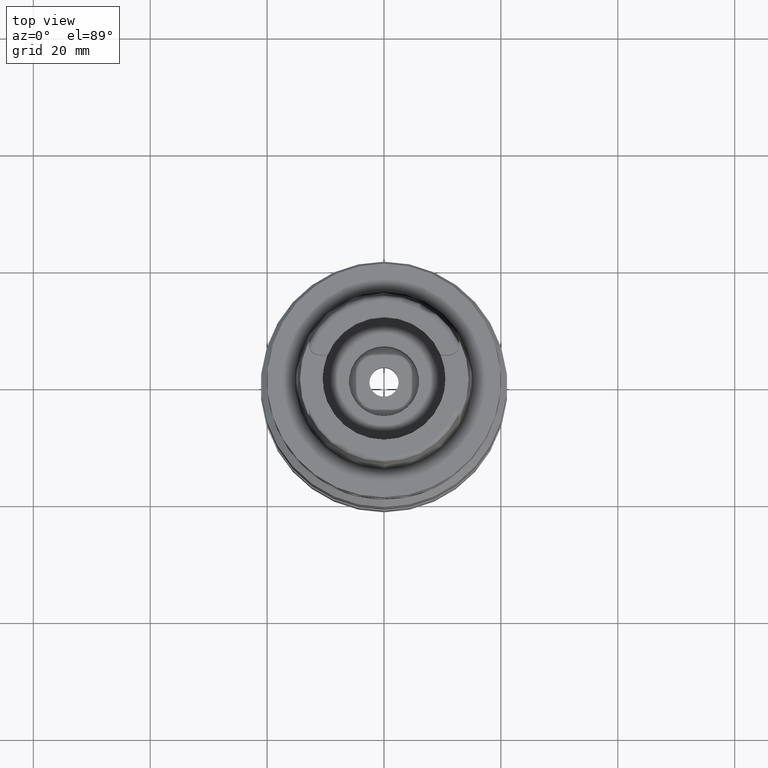
[diagram: clean part render]
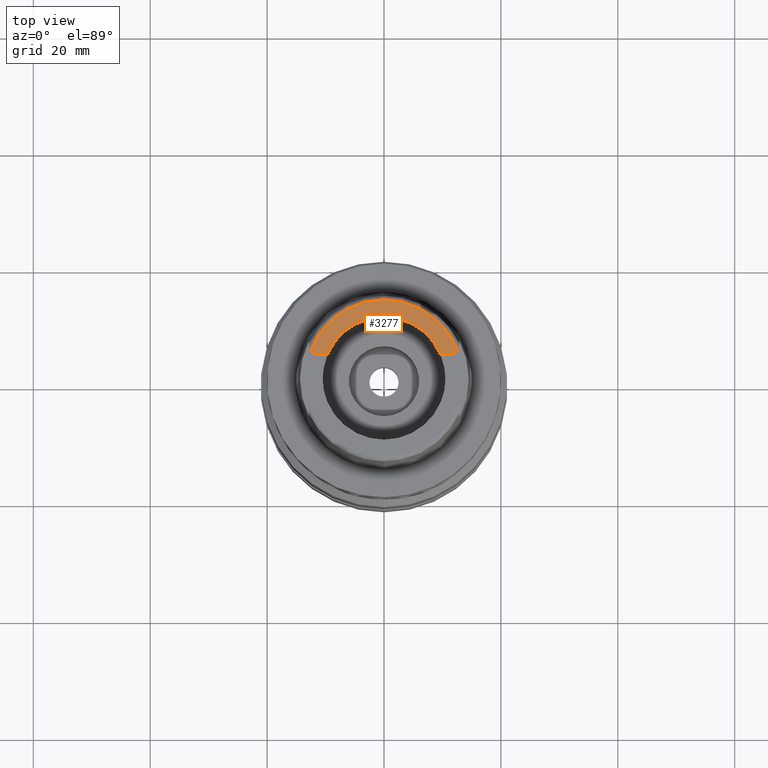
[diagram: same view with one face highlighted and labeled with its STEP entity id]
A machine part, top view. The second image highlights one B-rep face of the part: STEP entity #3277.
In plain terms, the highlighted planar face has unit normal (0, 0, -1).
Its self-contained STEP definition (entity closure, byte-faithful):
#2 = CIRCLE ( 'NONE', #3094, 1.880000000000000115 ) ;
#46 = ORIENTED_EDGE ( 'NONE', *, *, #1706, .T. ) ;
#75 = CARTESIAN_POINT ( 'NONE',  ( 9.697905701747998819, 4.025000000000000355, 20.00000000000000000 ) ) ;
#151 = CARTESIAN_POINT ( 'NONE',  ( 0.0000000000000000000, 10.50000000000000000, 20.00000000000000000 ) ) ;
#254 = DIRECTION ( 'NONE',  ( 0.9236100668331782559, 0.3833333333332911153, 0.0000000000000000000 ) ) ;
#257 = AXIS2_PLACEMENT_3D ( 'NONE', #2692, #4655, #1331 ) ;
#739 = EDGE_CURVE ( 'NONE', #2586, #2487, #5443, .T. ) ;
#920 = AXIS2_PLACEMENT_3D ( 'NONE', #3471, #3497, #979 ) ;
#965 = EDGE_CURVE ( 'NONE', #4784, #1825, #3789, .T. ) ;
#979 = DIRECTION ( 'NONE',  ( 0.0000000000000000000, -1.000000000000000000, 0.0000000000000000000 ) ) ;
#1053 = DIRECTION ( 'NONE',  ( 0.0000000000000000000, 0.0000000000000000000, 1.000000000000000000 ) ) ;
#1095 = DIRECTION ( 'NONE',  ( 0.0000000000000000000, 0.0000000000000000000, -1.000000000000000000 ) ) ;
#1331 = DIRECTION ( 'NONE',  ( 0.0000000000000000000, 1.000000000000000000, 0.0000000000000000000 ) ) ;
#1413 = ORIENTED_EDGE ( 'NONE', *, *, #3884, .F. ) ;
#1434 = DIRECTION ( 'NONE',  ( 0.0000000000000000000, 0.0000000000000000000, -1.000000000000000000 ) ) ;
#1665 = VECTOR ( 'NONE', #4724, 1000.000000000000000 ) ;
#1706 = EDGE_CURVE ( 'NONE', #4163, #2225, #3513, .T. ) ;
#1754 = CARTESIAN_POINT ( 'NONE',  ( 11.00000000000000000, 4.025000000000000355, 20.00000000000000000 ) ) ;
#1759 = AXIS2_PLACEMENT_3D ( 'NONE', #2717, #1053, #254 ) ;
#1825 = VERTEX_POINT ( 'NONE', #1953 ) ;
#1880 = CARTESIAN_POINT ( 'NONE',  ( 11.00000000000000000, 5.904999999999999361, 20.00000000000000000 ) ) ;
#1953 = CARTESIAN_POINT ( 'NONE',  ( 12.54148453352999937, 4.828791175991000273, 20.00000000000000000 ) ) ;
#2162 = FACE_OUTER_BOUND ( 'NONE', #4567, .T. ) ;
#2211 = VECTOR ( 'NONE', #2724, 1000.000000000000000 ) ;
#2225 = VERTEX_POINT ( 'NONE', #1754 ) ;
#2231 = ORIENTED_EDGE ( 'NONE', *, *, #3507, .F. ) ;
#2270 = EDGE_CURVE ( 'NONE', #4812, #2487, #3370, .T. ) ;
#2465 = ORIENTED_EDGE ( 'NONE', *, *, #739, .F. ) ;
#2487 = VERTEX_POINT ( 'NONE', #3472 ) ;
#2559 = CARTESIAN_POINT ( 'NONE',  ( 9.697905701747998819, 4.025000000000000355, 20.00000000000000000 ) ) ;
#2579 = CARTESIAN_POINT ( 'NONE',  ( 0.0000000000000000000, 1.469576158977000060E-14, 20.00000000000000000 ) ) ;
#2586 = VERTEX_POINT ( 'NONE', #151 ) ;
#2692 = CARTESIAN_POINT ( 'NONE',  ( 0.0000000000000000000, 1.532339307432999848E-14, 20.00000000000000000 ) ) ;
#2693 = CARTESIAN_POINT ( 'NONE',  ( -12.54148453352999937, 4.828791175990000184, 20.00000000000000000 ) ) ;
#2717 = CARTESIAN_POINT ( 'NONE',  ( 0.0000000000000000000, 1.532339307432999848E-14, 20.00000000000000000 ) ) ;
#2724 = DIRECTION ( 'NONE',  ( 1.000000000000000000, 1.841711261934000221E-14, 0.0000000000000000000 ) ) ;
#2734 = CIRCLE ( 'NONE', #1759, 10.49999999999999822 ) ;
#2758 = DIRECTION ( 'NONE',  ( 0.8199385816669358951, -0.5724515021327251096, 0.0000000000000000000 ) ) ;
#2984 = ORIENTED_EDGE ( 'NONE', *, *, #4748, .F. ) ;
#3017 = DIRECTION ( 'NONE',  ( 0.0000000000000000000, -1.000000000000000000, 0.0000000000000000000 ) ) ;
#3094 = AXIS2_PLACEMENT_3D ( 'NONE', #1880, #1095, #2758 ) ;
#3215 = CARTESIAN_POINT ( 'NONE',  ( 0.0000000000000000000, 1.459778984583999657E-14, 20.00000000000000000 ) ) ;
#3277 = ADVANCED_FACE ( 'NONE', ( #2162 ), #3439, .F. ) ;
#3370 = LINE ( 'NONE', #5208, #2211 ) ;
#3439 = PLANE ( 'NONE',  #4942 ) ;
#3471 = CARTESIAN_POINT ( 'NONE',  ( -11.00000000000000000, 5.904999999999999361, 20.00000000000000000 ) ) ;
#3472 = CARTESIAN_POINT ( 'NONE',  ( -9.697905701747998819, 4.025000000000000355, 20.00000000000000000 ) ) ;
#3492 = ORIENTED_EDGE ( 'NONE', *, *, #2270, .T. ) ;
#3497 = DIRECTION ( 'NONE',  ( 0.0000000000000000000, 0.0000000000000000000, -1.000000000000000000 ) ) ;
#3507 = EDGE_CURVE ( 'NONE', #4163, #2586, #2734, .T. ) ;
#3513 = LINE ( 'NONE', #75, #1665 ) ;
#3533 = AXIS2_PLACEMENT_3D ( 'NONE', #3215, #1434, #4460 ) ;
#3789 = CIRCLE ( 'NONE', #3533, 13.43897535254000175 ) ;
#3814 = CARTESIAN_POINT ( 'NONE',  ( -11.00000000000000000, 4.025000000000000355, 20.00000000000000000 ) ) ;
#3884 = EDGE_CURVE ( 'NONE', #1825, #2225, #2, .T. ) ;
#4102 = ORIENTED_EDGE ( 'NONE', *, *, #965, .F. ) ;
#4163 = VERTEX_POINT ( 'NONE', #2559 ) ;
#4460 = DIRECTION ( 'NONE',  ( 0.001485959642573941777, 0.9999988959613608230, 0.0000000000000000000 ) ) ;
#4567 = EDGE_LOOP ( 'NONE', ( #2465, #2231, #46, #1413, #4102, #2984, #3492 ) ) ;
#4655 = DIRECTION ( 'NONE',  ( 0.0000000000000000000, 0.0000000000000000000, 1.000000000000000000 ) ) ;
#4724 = DIRECTION ( 'NONE',  ( 1.000000000000000000, -1.909922790154000057E-14, 0.0000000000000000000 ) ) ;
#4748 = EDGE_CURVE ( 'NONE', #4812, #4784, #5243, .T. ) ;
#4784 = VERTEX_POINT ( 'NONE', #2693 ) ;
#4812 = VERTEX_POINT ( 'NONE', #3814 ) ;
#4942 = AXIS2_PLACEMENT_3D ( 'NONE', #2579, #5114, #3017 ) ;
#5114 = DIRECTION ( 'NONE',  ( 0.0000000000000000000, 0.0000000000000000000, -1.000000000000000000 ) ) ;
#5208 = CARTESIAN_POINT ( 'NONE',  ( -11.00000000000000000, 4.025000000000000355, 20.00000000000000000 ) ) ;
#5243 = CIRCLE ( 'NONE', #920, 1.879999999999999671 ) ;
#5443 = CIRCLE ( 'NONE', #257, 10.50000000000000000 ) ;